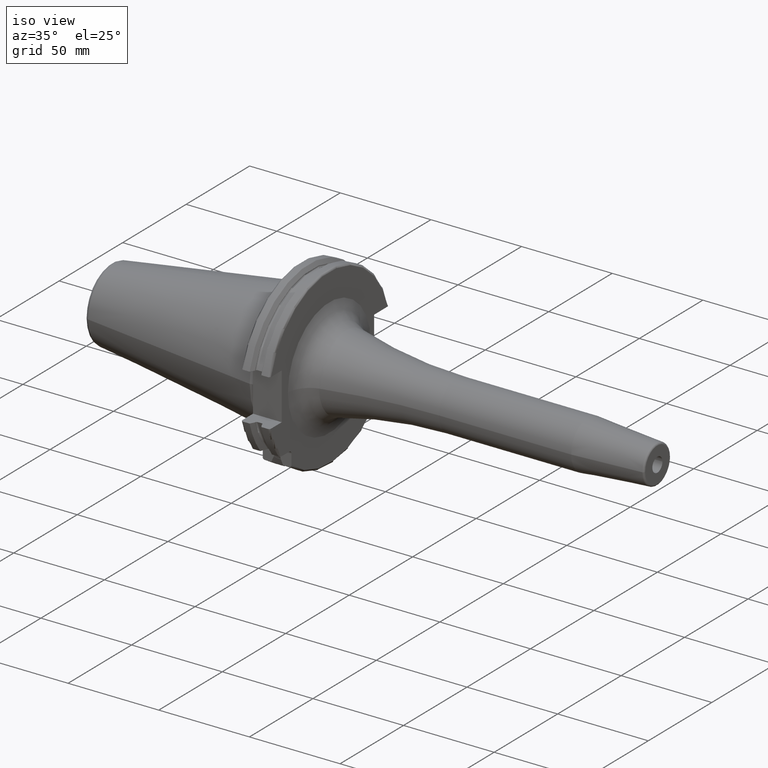
[diagram: clean part render]
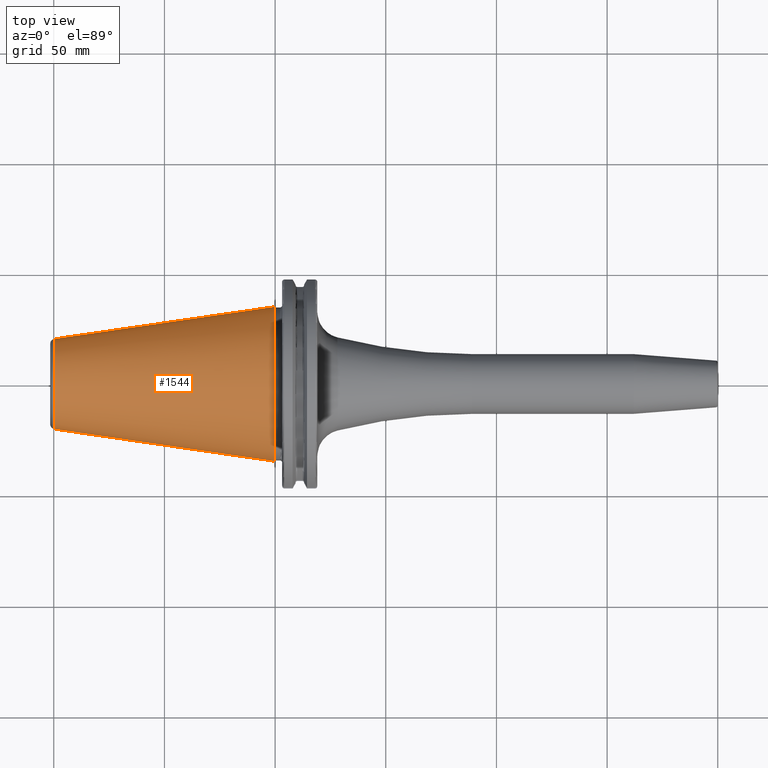
[diagram: tour spotlight — one face highlighted and labeled with its STEP entity id]
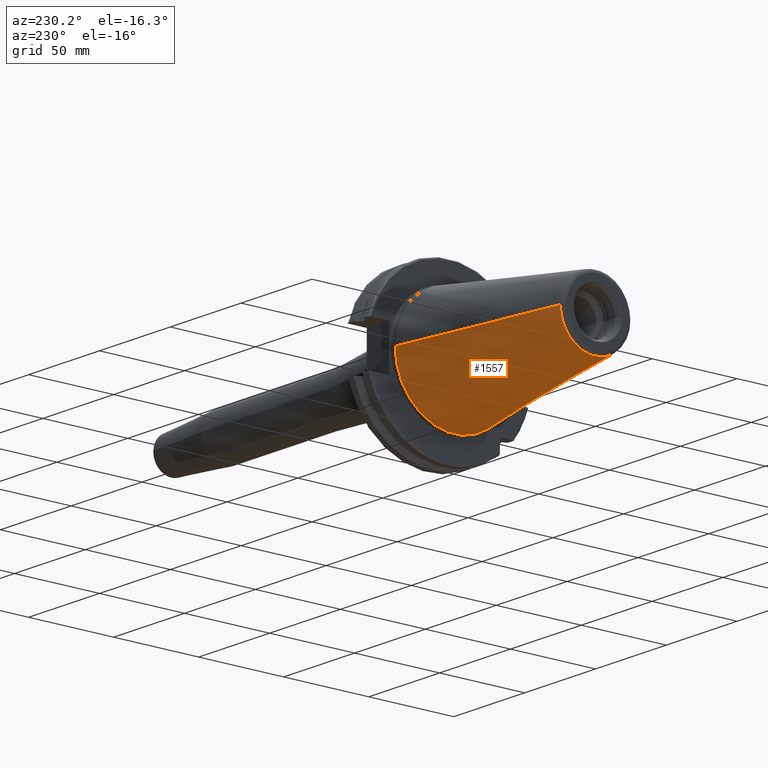
[diagram: tour spotlight — one face highlighted and labeled with its STEP entity id]
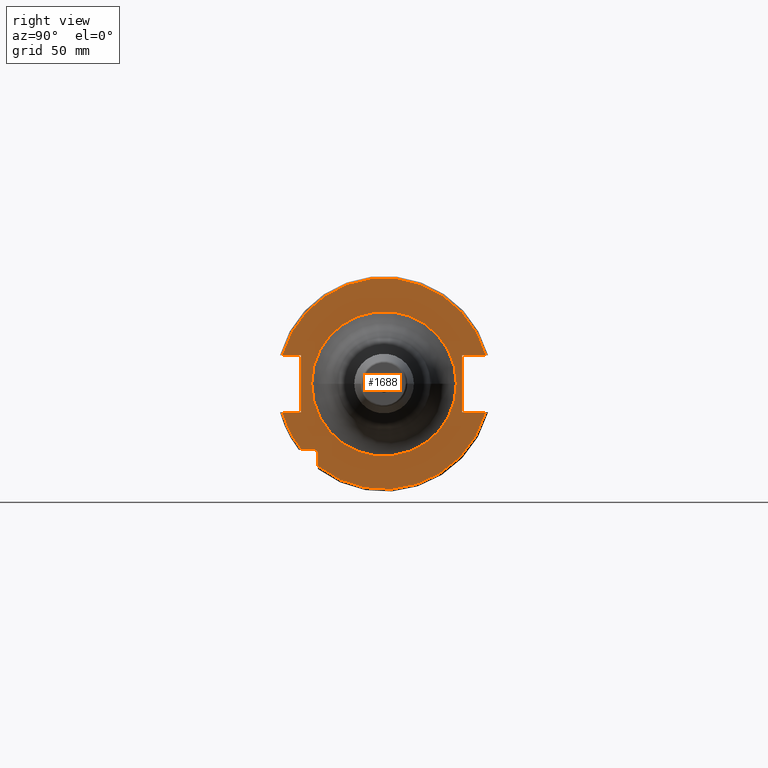
[diagram: tour spotlight — one face highlighted and labeled with its STEP entity id]
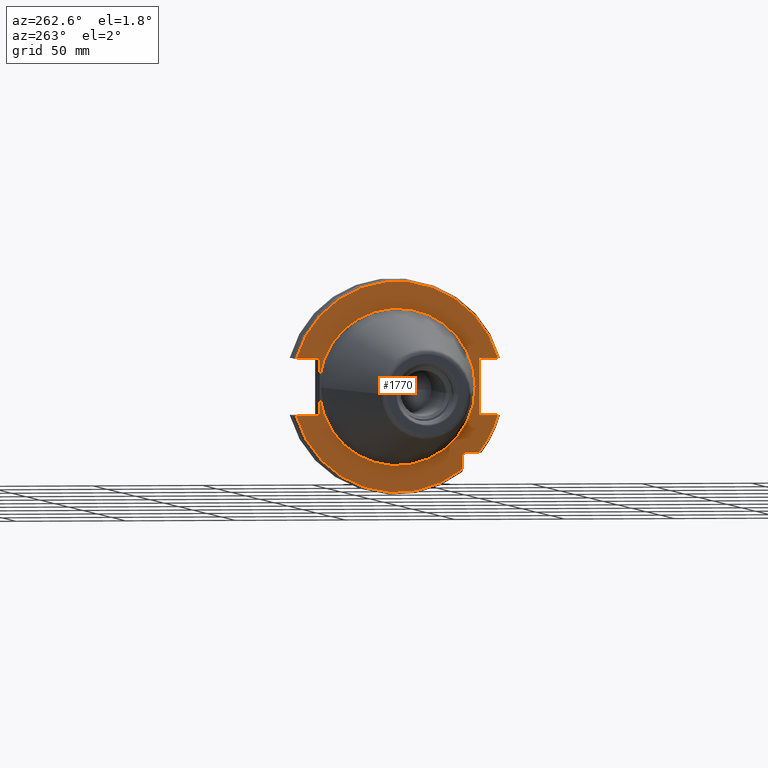
[diagram: tour spotlight — one face highlighted and labeled with its STEP entity id]
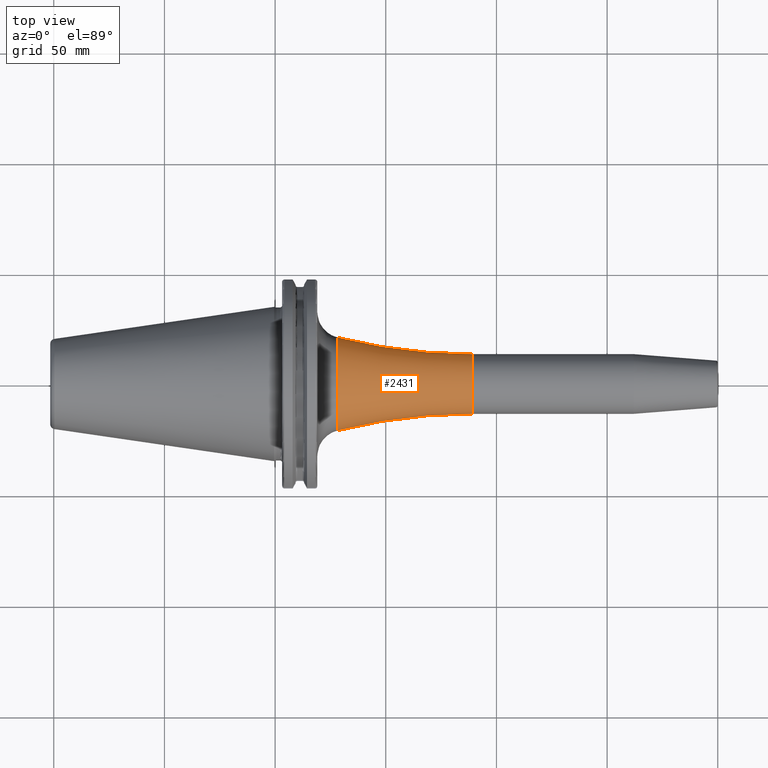
[diagram: tour spotlight — one face highlighted and labeled with its STEP entity id]
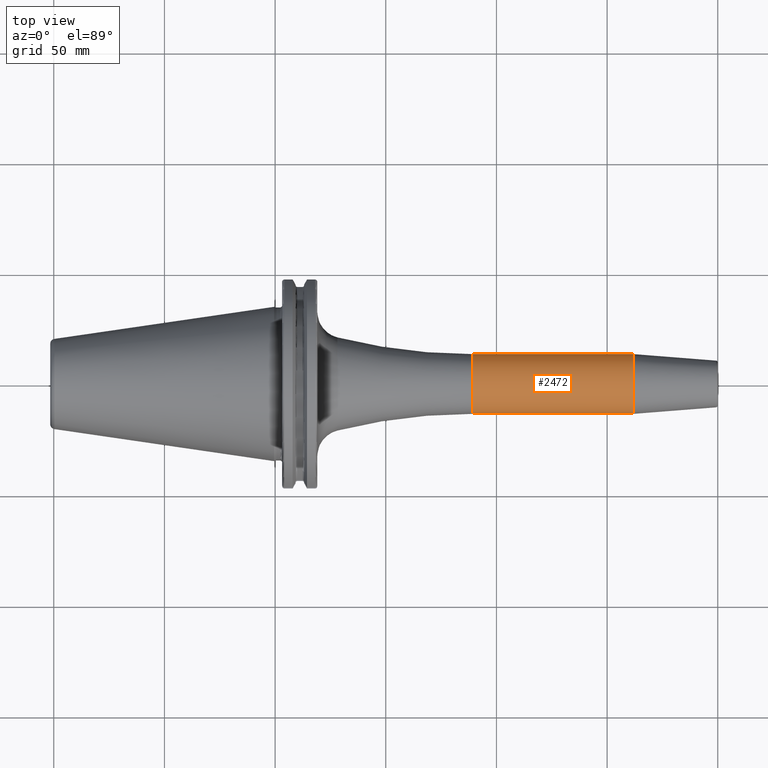
[diagram: tour spotlight — one face highlighted and labeled with its STEP entity id]
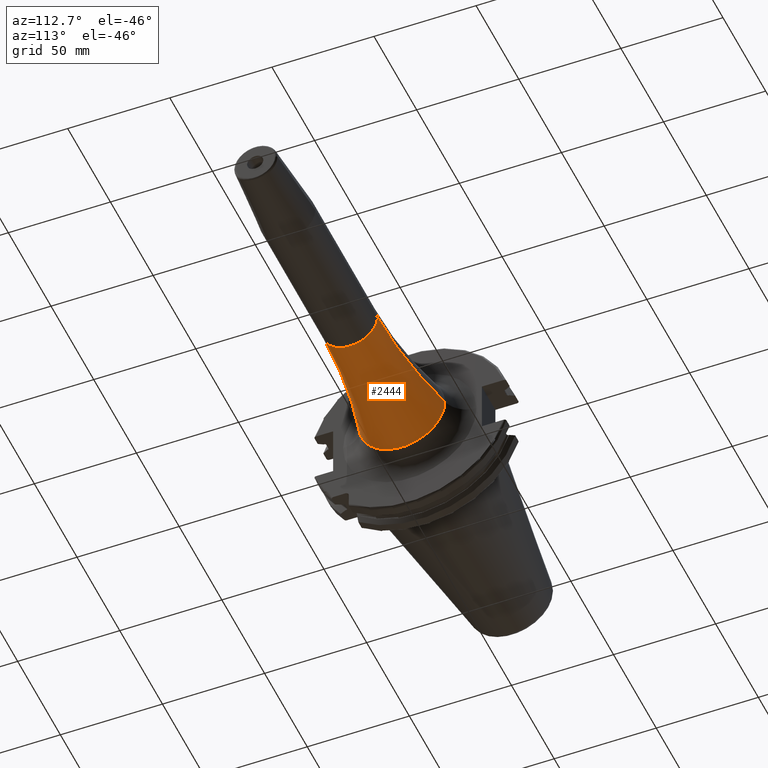
[diagram: tour spotlight — one face highlighted and labeled with its STEP entity id]
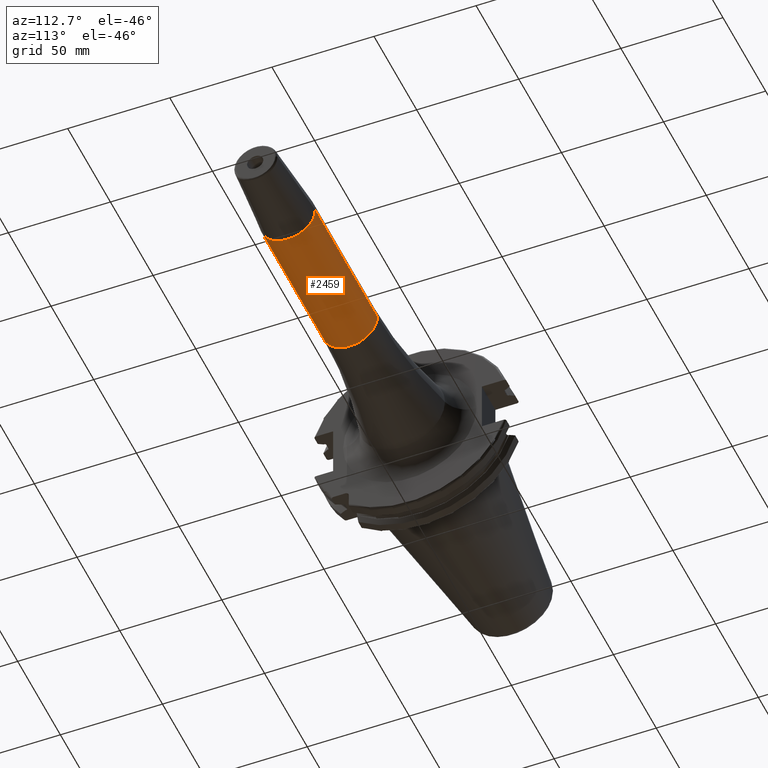
[diagram: tour spotlight — one face highlighted and labeled with its STEP entity id]
A machine part: a face-by-face anatomy tour. The part has 95 B-rep faces; the first image is the clean iso view, then the 8 largest visible faces are spotlighted one at a time (largest first), each with its STEP entity span.

Face 1 — top view, entity #1544. In plain terms, the highlighted conical surface has half-angle 8.298 deg.
Definition (entity closure, byte-faithful):
#37=CARTESIAN_POINT('',(-9.967471700563E1,0.E0,0.E0));
#38=DIRECTION('',(1.E0,0.E0,0.E0));
#39=DIRECTION('',(0.E0,1.E0,0.E0));
#40=AXIS2_PLACEMENT_3D('',#37,#38,#39);
#42=CARTESIAN_POINT('',(-4.896823332305E-1,0.E0,0.E0));
#43=DIRECTION('',(1.E0,0.E0,0.E0));
#44=DIRECTION('',(0.E0,1.E0,0.E0));
#45=AXIS2_PLACEMENT_3D('',#42,#43,#44);
#47=DIRECTION('',(-9.895312636440E-1,-1.443186691705E-1,0.E0));
#48=VECTOR('',#47,1.002343617797E2);
#49=CARTESIAN_POINT('',(-4.896823332305E-1,3.485358204157E1,0.E0));
#50=LINE('',#49,#48);
#51=DIRECTION('',(-9.895312636440E-1,1.443186691705E-1,0.E0));
#52=VECTOR('',#51,1.002343617797E2);
#53=CARTESIAN_POINT('',(-4.896823332305E-1,-3.485358204157E1,0.E0));
#54=LINE('',#53,#52);
#1226=CARTESIAN_POINT('',(-9.967471700563E1,2.038789234437E1,0.E0));
#1228=VERTEX_POINT('',#1226);
#1230=CARTESIAN_POINT('',(-9.967471700563E1,-2.038789234437E1,0.E0));
#1232=VERTEX_POINT('',#1230);
#1294=CARTESIAN_POINT('',(-4.896823332305E-1,3.485358204157E1,0.E0));
#1295=VERTEX_POINT('',#1294);
#1296=CARTESIAN_POINT('',(-4.896823332305E-1,-3.485358204157E1,0.E0));
#1297=VERTEX_POINT('',#1296);
#1530=CARTESIAN_POINT('',(-5.008219966943E1,0.E0,0.E0));
#1531=DIRECTION('',(1.E0,0.E0,0.E0));
#1532=DIRECTION('',(0.E0,-1.E0,0.E0));
#1533=AXIS2_PLACEMENT_3D('',#1530,#1531,#1532);
#1534=CONICAL_SURFACE('',#1533,2.762073719297E1,8.297826828206E0);
#1536=ORIENTED_EDGE('',*,*,#1535,.F.);
#1538=ORIENTED_EDGE('',*,*,#1537,.T.);
#1540=ORIENTED_EDGE('',*,*,#1539,.T.);
#1541=ORIENTED_EDGE('',*,*,#1523,.F.);
#1542=EDGE_LOOP('',(#1536,#1538,#1540,#1541));
#1543=FACE_OUTER_BOUND('',#1542,.F.);
#1544=ADVANCED_FACE('',(#1543),#1534,.T.);
#41=CIRCLE('',#40,2.038789234437E1);
#46=CIRCLE('',#45,3.485358204157E1);
#1523=EDGE_CURVE('',#1228,#1232,#41,.T.);
#1535=EDGE_CURVE('',#1295,#1228,#50,.T.);
#1537=EDGE_CURVE('',#1295,#1297,#46,.T.);
#1539=EDGE_CURVE('',#1297,#1232,#54,.T.);

Face 2 — auxiliary view, entity #1557. In plain terms, the highlighted conical surface has half-angle 8.298 deg.
Definition (entity closure, byte-faithful):
#32=CARTESIAN_POINT('',(-9.967471700563E1,0.E0,0.E0));
#33=DIRECTION('',(-1.E0,0.E0,0.E0));
#34=DIRECTION('',(0.E0,1.E0,0.E0));
#35=AXIS2_PLACEMENT_3D('',#32,#33,#34);
#47=DIRECTION('',(-9.895312636440E-1,-1.443186691705E-1,0.E0));
#48=VECTOR('',#47,1.002343617797E2);
#49=CARTESIAN_POINT('',(-4.896823332305E-1,3.485358204157E1,0.E0));
#50=LINE('',#49,#48);
#51=DIRECTION('',(-9.895312636440E-1,1.443186691705E-1,0.E0));
#52=VECTOR('',#51,1.002343617797E2);
#53=CARTESIAN_POINT('',(-4.896823332305E-1,-3.485358204157E1,0.E0));
#54=LINE('',#53,#52);
#55=CARTESIAN_POINT('',(-4.896823332305E-1,0.E0,0.E0));
#56=DIRECTION('',(-1.E0,0.E0,0.E0));
#57=DIRECTION('',(0.E0,1.E0,0.E0));
#58=AXIS2_PLACEMENT_3D('',#55,#56,#57);
#1226=CARTESIAN_POINT('',(-9.967471700563E1,2.038789234437E1,0.E0));
#1228=VERTEX_POINT('',#1226);
#1230=CARTESIAN_POINT('',(-9.967471700563E1,-2.038789234437E1,0.E0));
#1232=VERTEX_POINT('',#1230);
#1294=CARTESIAN_POINT('',(-4.896823332305E-1,3.485358204157E1,0.E0));
#1295=VERTEX_POINT('',#1294);
#1296=CARTESIAN_POINT('',(-4.896823332305E-1,-3.485358204157E1,0.E0));
#1297=VERTEX_POINT('',#1296);
#1545=CARTESIAN_POINT('',(-5.008219966943E1,0.E0,0.E0));
#1546=DIRECTION('',(1.E0,0.E0,0.E0));
#1547=DIRECTION('',(0.E0,-1.E0,0.E0));
#1548=AXIS2_PLACEMENT_3D('',#1545,#1546,#1547);
#1549=CONICAL_SURFACE('',#1548,2.762073719297E1,8.297826828206E0);
#1550=ORIENTED_EDGE('',*,*,#1535,.T.);
#1551=ORIENTED_EDGE('',*,*,#1512,.T.);
#1552=ORIENTED_EDGE('',*,*,#1539,.F.);
#1554=ORIENTED_EDGE('',*,*,#1553,.F.);
#1555=EDGE_LOOP('',(#1550,#1551,#1552,#1554));
#1556=FACE_OUTER_BOUND('',#1555,.F.);
#1557=ADVANCED_FACE('',(#1556),#1549,.T.);
#36=CIRCLE('',#35,2.038789234437E1);
#59=CIRCLE('',#58,3.485358204157E1);
#1512=EDGE_CURVE('',#1228,#1232,#36,.T.);
#1535=EDGE_CURVE('',#1295,#1228,#50,.T.);
#1539=EDGE_CURVE('',#1297,#1232,#54,.T.);
#1553=EDGE_CURVE('',#1295,#1297,#59,.T.);

Face 3 — right view, entity #1688. In plain terms, the highlighted planar face has unit normal (1, 0, 0).
Definition (entity closure, byte-faithful):
#126=DIRECTION('',(0.E0,0.E0,1.E0));
#127=VECTOR('',#126,5.653810627237E0);
#128=CARTESIAN_POINT('',(1.905E1,-2.985E1,-3.725381062724E1));
#129=LINE('',#128,#127);
#130=DIRECTION('',(0.E0,-1.E0,0.E0));
#131=VECTOR('',#130,5.653810627237E0);
#132=CARTESIAN_POINT('',(1.905E1,-3.16E1,-2.985E1));
#133=LINE('',#132,#131);
#134=DIRECTION('',(0.E0,1.E0,0.E0));
#135=VECTOR('',#134,8.461493733886E0);
#136=CARTESIAN_POINT('',(1.905E1,-4.596149373389E1,-1.29E1));
#137=LINE('',#136,#135);
#138=DIRECTION('',(0.E0,0.E0,1.E0));
#139=VECTOR('',#138,2.58E1);
#140=CARTESIAN_POINT('',(1.905E1,-3.75E1,-1.29E1));
#141=LINE('',#140,#139);
#142=DIRECTION('',(0.E0,1.E0,0.E0));
#143=VECTOR('',#142,8.461493733886E0);
#144=CARTESIAN_POINT('',(1.905E1,-4.596149373389E1,1.29E1));
#145=LINE('',#144,#143);
#146=DIRECTION('',(0.E0,-1.E0,0.E0));
#147=VECTOR('',#146,1.066149373389E1);
#148=CARTESIAN_POINT('',(1.905E1,4.596149373389E1,1.29E1));
#149=LINE('',#148,#147);
#150=DIRECTION('',(0.E0,0.E0,-1.E0));
#151=VECTOR('',#150,2.58E1);
#152=CARTESIAN_POINT('',(1.905E1,3.53E1,1.29E1));
#153=LINE('',#152,#151);
#154=DIRECTION('',(0.E0,-1.E0,0.E0));
#155=VECTOR('',#154,1.066149373389E1);
#156=CARTESIAN_POINT('',(1.905E1,4.596149373389E1,-1.29E1));
#157=LINE('',#156,#155);
#158=CARTESIAN_POINT('',(1.905E1,0.E0,0.E0));
#159=DIRECTION('',(1.E0,0.E0,0.E0));
#160=DIRECTION('',(0.E0,-1.E0,0.E0));
#161=AXIS2_PLACEMENT_3D('',#158,#159,#160);
#163=CARTESIAN_POINT('',(1.905E1,0.E0,0.E0));
#164=DIRECTION('',(1.E0,0.E0,0.E0));
#165=DIRECTION('',(0.E0,1.E0,0.E0));
#166=AXIS2_PLACEMENT_3D('',#163,#164,#165);
#172=CARTESIAN_POINT('',(1.905E1,-3.16E1,-3.16E1));
#173=DIRECTION('',(-1.E0,0.E0,0.E0));
#174=DIRECTION('',(0.E0,0.E0,1.E0));
#175=AXIS2_PLACEMENT_3D('',#172,#173,#174);
#545=CARTESIAN_POINT('',(1.905E1,0.E0,0.E0));
#546=DIRECTION('',(1.E0,0.E0,0.E0));
#547=DIRECTION('',(0.E0,9.627964123359E-1,2.702278083268E-1));
#548=AXIS2_PLACEMENT_3D('',#545,#546,#547);
#844=CARTESIAN_POINT('',(1.905E1,0.E0,0.E0));
#845=DIRECTION('',(-1.E0,0.E0,0.E0));
#846=DIRECTION('',(0.E0,9.627964123359E-1,-2.702278083268E-1));
#847=AXIS2_PLACEMENT_3D('',#844,#845,#846);
#860=CARTESIAN_POINT('',(1.905E1,0.E0,0.E0));
#861=DIRECTION('',(-1.E0,0.E0,0.E0));
#862=DIRECTION('',(0.E0,-7.803888060170E-1,-6.252945797329E-1));
#863=AXIS2_PLACEMENT_3D('',#860,#861,#862);
#874=CARTESIAN_POINT('',(1.905E1,-3.725381062724E1,-2.985E1));
#1348=CARTESIAN_POINT('',(1.905E1,4.596149373389E1,1.29E1));
#1349=CARTESIAN_POINT('',(1.905E1,3.53E1,1.29E1));
#1350=VERTEX_POINT('',#1348);
#1351=VERTEX_POINT('',#1349);
#1352=CARTESIAN_POINT('',(1.905E1,3.53E1,-1.29E1));
#1353=VERTEX_POINT('',#1352);
#1354=CARTESIAN_POINT('',(1.905E1,4.596149373389E1,-1.29E1));
#1355=VERTEX_POINT('',#1354);
#1356=CARTESIAN_POINT('',(1.905E1,-4.596149373389E1,-1.29E1));
#1357=CARTESIAN_POINT('',(1.905E1,-3.75E1,-1.29E1));
#1358=VERTEX_POINT('',#1356);
#1359=VERTEX_POINT('',#1357);
#1360=CARTESIAN_POINT('',(1.905E1,-3.75E1,1.29E1));
#1361=VERTEX_POINT('',#1360);
#1362=CARTESIAN_POINT('',(1.905E1,-4.596149373389E1,1.29E1));
#1363=VERTEX_POINT('',#1362);
#1417=CARTESIAN_POINT('',(1.905E1,-2.985E1,-3.725381062724E1));
#1418=VERTEX_POINT('',#1417);
#1425=CARTESIAN_POINT('',(1.905E1,-3.16E1,-2.985E1));
#1426=CARTESIAN_POINT('',(1.905E1,-2.985E1,-3.16E1));
#1427=VERTEX_POINT('',#1425);
#1428=VERTEX_POINT('',#1426);
#1450=VERTEX_POINT('',#874);
#1476=CARTESIAN_POINT('',(1.905E1,-3.267539125994E1,0.E0));
#1477=CARTESIAN_POINT('',(1.905E1,3.267539125994E1,0.E0));
#1478=VERTEX_POINT('',#1476);
#1479=VERTEX_POINT('',#1477);
#1652=CARTESIAN_POINT('',(1.905E1,0.E0,0.E0));
#1653=DIRECTION('',(1.E0,0.E0,0.E0));
#1654=DIRECTION('',(0.E0,-1.E0,0.E0));
#1655=AXIS2_PLACEMENT_3D('',#1652,#1653,#1654);
#1656=PLANE('',#1655);
#1658=ORIENTED_EDGE('',*,*,#1657,.T.);
#1660=ORIENTED_EDGE('',*,*,#1659,.F.);
#1662=ORIENTED_EDGE('',*,*,#1661,.T.);
#1664=ORIENTED_EDGE('',*,*,#1663,.T.);
#1666=ORIENTED_EDGE('',*,*,#1665,.T.);
#1668=ORIENTED_EDGE('',*,*,#1667,.T.);
#1670=ORIENTED_EDGE('',*,*,#1669,.F.);
#1672=ORIENTED_EDGE('',*,*,#1671,.F.);
#1674=ORIENTED_EDGE('',*,*,#1673,.T.);
#1675=ORIENTED_EDGE('',*,*,#1636,.T.);
#1677=ORIENTED_EDGE('',*,*,#1676,.F.);
#1679=ORIENTED_EDGE('',*,*,#1678,.T.);
#1680=EDGE_LOOP('',(#1658,#1660,#1662,#1664,#1666,#1668,#1670,#1672,#1674,#1675,
#1677,#1679));
#1681=FACE_OUTER_BOUND('',#1680,.F.);
#1683=ORIENTED_EDGE('',*,*,#1682,.T.);
#1685=ORIENTED_EDGE('',*,*,#1684,.T.);
#1686=EDGE_LOOP('',(#1683,#1685));
#1687=FACE_BOUND('',#1686,.F.);
#1688=ADVANCED_FACE('',(#1681,#1687),#1656,.T.);
#162=CIRCLE('',#161,3.267539125994E1);
#167=CIRCLE('',#166,3.267539125994E1);
#176=CIRCLE('',#175,1.75E0);
#549=CIRCLE('',#548,4.77375E1);
#848=CIRCLE('',#847,4.77375E1);
#864=CIRCLE('',#863,4.77375E1);
#1636=EDGE_CURVE('',#1351,#1353,#153,.T.);
#1657=EDGE_CURVE('',#1418,#1428,#129,.T.);
#1659=EDGE_CURVE('',#1427,#1428,#176,.T.);
#1661=EDGE_CURVE('',#1427,#1450,#133,.T.);
#1663=EDGE_CURVE('',#1450,#1358,#864,.T.);
#1665=EDGE_CURVE('',#1358,#1359,#137,.T.);
#1667=EDGE_CURVE('',#1359,#1361,#141,.T.);
#1669=EDGE_CURVE('',#1363,#1361,#145,.T.);
#1671=EDGE_CURVE('',#1350,#1363,#549,.T.);
#1673=EDGE_CURVE('',#1350,#1351,#149,.T.);
#1676=EDGE_CURVE('',#1355,#1353,#157,.T.);
#1678=EDGE_CURVE('',#1355,#1418,#848,.T.);
#1682=EDGE_CURVE('',#1478,#1479,#162,.T.);
#1684=EDGE_CURVE('',#1479,#1478,#167,.T.);

Face 4 — auxiliary view, entity #1770. In plain terms, the highlighted planar face has unit normal (1, 0, 0).
Definition (entity closure, byte-faithful):
#117=CARTESIAN_POINT('',(3.2E0,0.E0,0.E0));
#118=DIRECTION('',(-1.E0,0.E0,0.E0));
#119=DIRECTION('',(0.E0,9.922698524245E-1,-1.240989120402E-1));
#120=AXIS2_PLACEMENT_3D('',#117,#118,#119);
#177=CARTESIAN_POINT('',(3.2E0,-3.16E1,-3.16E1));
#178=DIRECTION('',(1.E0,0.E0,0.E0));
#179=DIRECTION('',(0.E0,1.E0,0.E0));
#180=AXIS2_PLACEMENT_3D('',#177,#178,#179);
#182=DIRECTION('',(0.E0,-1.E0,0.E0));
#183=VECTOR('',#182,5.653810627237E0);
#184=CARTESIAN_POINT('',(3.2E0,-3.16E1,-2.985E1));
#185=LINE('',#184,#183);
#186=DIRECTION('',(0.E0,0.E0,1.E0));
#187=VECTOR('',#186,5.653810627237E0);
#188=CARTESIAN_POINT('',(3.2E0,-2.985E1,-3.725381062724E1));
#189=LINE('',#188,#187);
#190=CARTESIAN_POINT('',(3.2E0,0.E0,0.E0));
#191=DIRECTION('',(-1.E0,0.E0,0.E0));
#192=DIRECTION('',(0.E0,9.627964123359E-1,-2.702278083268E-1));
#193=AXIS2_PLACEMENT_3D('',#190,#191,#192);
#195=DIRECTION('',(0.E0,-1.E0,0.E0));
#196=VECTOR('',#195,1.066149373389E1);
#197=CARTESIAN_POINT('',(3.2E0,4.596149373389E1,-1.29E1));
#198=LINE('',#197,#196);
#199=DIRECTION('',(0.E0,0.E0,-1.E0));
#200=VECTOR('',#199,8.485181204172E0);
#201=CARTESIAN_POINT('',(3.2E0,3.53E1,-4.414818795828E0));
#202=LINE('',#201,#200);
#203=DIRECTION('',(0.E0,0.E0,-1.E0));
#204=VECTOR('',#203,8.485181204172E0);
#205=CARTESIAN_POINT('',(3.2E0,3.53E1,1.29E1));
#206=LINE('',#205,#204);
#207=DIRECTION('',(0.E0,-1.E0,0.E0));
#208=VECTOR('',#207,1.066149373389E1);
#209=CARTESIAN_POINT('',(3.2E0,4.596149373389E1,1.29E1));
#210=LINE('',#209,#208);
#211=CARTESIAN_POINT('',(3.2E0,0.E0,0.E0));
#212=DIRECTION('',(1.E0,0.E0,0.E0));
#213=DIRECTION('',(0.E0,9.627964123359E-1,2.702278083268E-1));
#214=AXIS2_PLACEMENT_3D('',#211,#212,#213);
#216=DIRECTION('',(0.E0,1.E0,0.E0));
#217=VECTOR('',#216,8.461493733886E0);
#218=CARTESIAN_POINT('',(3.2E0,-4.596149373389E1,1.29E1));
#219=LINE('',#218,#217);
#220=DIRECTION('',(0.E0,0.E0,1.E0));
#221=VECTOR('',#220,2.58E1);
#222=CARTESIAN_POINT('',(3.2E0,-3.75E1,-1.29E1));
#223=LINE('',#222,#221);
#224=DIRECTION('',(0.E0,1.E0,0.E0));
#225=VECTOR('',#224,8.461493733886E0);
#226=CARTESIAN_POINT('',(3.2E0,-4.596149373389E1,-1.29E1));
#227=LINE('',#226,#225);
#228=CARTESIAN_POINT('',(3.2E0,0.E0,0.E0));
#229=DIRECTION('',(-1.E0,0.E0,0.E0));
#230=DIRECTION('',(0.E0,-7.803888060170E-1,-6.252945797329E-1));
#231=AXIS2_PLACEMENT_3D('',#228,#229,#230);
#279=CARTESIAN_POINT('',(3.2E0,-3.725381062724E1,-2.985E1));
#891=CARTESIAN_POINT('',(3.2E0,0.E0,0.E0));
#892=DIRECTION('',(1.E0,0.E0,0.E0));
#893=DIRECTION('',(0.E0,9.922698524245E-1,1.240989120402E-1));
#894=AXIS2_PLACEMENT_3D('',#891,#892,#893);
#1238=CARTESIAN_POINT('',(3.2E0,-3.5575E1,0.E0));
#1240=VERTEX_POINT('',#1238);
#1372=CARTESIAN_POINT('',(3.2E0,4.596149373389E1,1.29E1));
#1373=CARTESIAN_POINT('',(3.2E0,3.53E1,1.29E1));
#1374=VERTEX_POINT('',#1372);
#1375=VERTEX_POINT('',#1373);
#1376=CARTESIAN_POINT('',(3.2E0,3.53E1,4.414818795828E0));
#1377=VERTEX_POINT('',#1376);
#1378=CARTESIAN_POINT('',(3.2E0,3.53E1,-4.414818795828E0));
#1379=CARTESIAN_POINT('',(3.2E0,3.53E1,-1.29E1));
#1380=VERTEX_POINT('',#1378);
#1381=VERTEX_POINT('',#1379);
#1382=CARTESIAN_POINT('',(3.2E0,4.596149373389E1,-1.29E1));
#1383=VERTEX_POINT('',#1382);
#1384=CARTESIAN_POINT('',(3.2E0,-4.596149373389E1,-1.29E1));
#1385=CARTESIAN_POINT('',(3.2E0,-3.75E1,-1.29E1));
#1386=VERTEX_POINT('',#1384);
#1387=VERTEX_POINT('',#1385);
#1388=CARTESIAN_POINT('',(3.2E0,-3.75E1,1.29E1));
#1389=VERTEX_POINT('',#1388);
#1390=CARTESIAN_POINT('',(3.2E0,-4.596149373389E1,1.29E1));
#1391=VERTEX_POINT('',#1390);
#1423=CARTESIAN_POINT('',(3.2E0,-2.985E1,-3.725381062724E1));
#1424=VERTEX_POINT('',#1423);
#1429=CARTESIAN_POINT('',(3.2E0,-2.985E1,-3.16E1));
#1430=CARTESIAN_POINT('',(3.2E0,-3.16E1,-2.985E1));
#1431=VERTEX_POINT('',#1429);
#1432=VERTEX_POINT('',#1430);
#1451=VERTEX_POINT('',#279);
#1738=CARTESIAN_POINT('',(3.2E0,0.E0,0.E0));
#1739=DIRECTION('',(1.E0,0.E0,0.E0));
#1740=DIRECTION('',(0.E0,-1.E0,0.E0));
#1741=AXIS2_PLACEMENT_3D('',#1738,#1739,#1740);
#1742=PLANE('',#1741);
#1744=ORIENTED_EDGE('',*,*,#1743,.F.);
#1745=ORIENTED_EDGE('',*,*,#1731,.F.);
#1746=ORIENTED_EDGE('',*,*,#1719,.F.);
#1748=ORIENTED_EDGE('',*,*,#1747,.F.);
#1750=ORIENTED_EDGE('',*,*,#1749,.T.);
#1751=ORIENTED_EDGE('',*,*,#1645,.F.);
#1752=ORIENTED_EDGE('',*,*,#1626,.T.);
#1754=ORIENTED_EDGE('',*,*,#1753,.F.);
#1755=ORIENTED_EDGE('',*,*,#1640,.F.);
#1757=ORIENTED_EDGE('',*,*,#1756,.F.);
#1759=ORIENTED_EDGE('',*,*,#1758,.T.);
#1761=ORIENTED_EDGE('',*,*,#1760,.T.);
#1763=ORIENTED_EDGE('',*,*,#1762,.F.);
#1765=ORIENTED_EDGE('',*,*,#1764,.F.);
#1767=ORIENTED_EDGE('',*,*,#1766,.F.);
#1768=EDGE_LOOP('',(#1744,#1745,#1746,#1748,#1750,#1751,#1752,#1754,#1755,#1757,
#1759,#1761,#1763,#1765,#1767));
#1769=FACE_OUTER_BOUND('',#1768,.F.);
#1770=ADVANCED_FACE('',(#1769),#1742,.F.);
#121=CIRCLE('',#120,3.5575E1);
#181=CIRCLE('',#180,1.75E0);
#194=CIRCLE('',#193,4.77375E1);
#215=CIRCLE('',#214,4.77375E1);
#232=CIRCLE('',#231,4.77375E1);
#895=CIRCLE('',#894,3.5575E1);
#1626=EDGE_CURVE('',#1380,#1240,#121,.T.);
#1640=EDGE_CURVE('',#1375,#1377,#206,.T.);
#1645=EDGE_CURVE('',#1380,#1381,#202,.T.);
#1719=EDGE_CURVE('',#1424,#1431,#189,.T.);
#1731=EDGE_CURVE('',#1431,#1432,#181,.T.);
#1743=EDGE_CURVE('',#1432,#1451,#185,.T.);
#1747=EDGE_CURVE('',#1383,#1424,#194,.T.);
#1749=EDGE_CURVE('',#1383,#1381,#198,.T.);
#1753=EDGE_CURVE('',#1377,#1240,#895,.T.);
#1756=EDGE_CURVE('',#1374,#1375,#210,.T.);
#1758=EDGE_CURVE('',#1374,#1391,#215,.T.);
#1760=EDGE_CURVE('',#1391,#1389,#219,.T.);
#1762=EDGE_CURVE('',#1387,#1389,#223,.T.);
#1764=EDGE_CURVE('',#1386,#1387,#227,.T.);
#1766=EDGE_CURVE('',#1451,#1386,#232,.T.);

Face 5 — top view, entity #2431. In plain terms, the highlighted toroidal blend (fillet) surface has major radius 263.5 mm and minor (blend) radius 250 mm.
Definition (entity closure, byte-faithful):
#906=CARTESIAN_POINT('',(2.812563025210E1,0.E0,0.E0));
#907=DIRECTION('',(1.E0,0.E0,0.E0));
#908=DIRECTION('',(0.E0,1.E0,0.E0));
#909=AXIS2_PLACEMENT_3D('',#906,#907,#908);
#916=CARTESIAN_POINT('',(8.905E1,-2.635E2,-6.453888631507E-14));
#917=DIRECTION('',(0.E0,0.E0,1.E0));
#918=DIRECTION('',(0.E0,1.E0,0.E0));
#919=AXIS2_PLACEMENT_3D('',#916,#917,#918);
#921=CARTESIAN_POINT('',(8.905E1,2.635E2,3.226944315753E-14));
#922=DIRECTION('',(0.E0,0.E0,-1.E0));
#923=DIRECTION('',(0.E0,-1.E0,0.E0));
#924=AXIS2_PLACEMENT_3D('',#921,#922,#923);
#944=CARTESIAN_POINT('',(8.905E1,0.E0,0.E0));
#945=DIRECTION('',(1.E0,0.E0,0.E0));
#946=DIRECTION('',(0.E0,1.E0,0.E0));
#947=AXIS2_PLACEMENT_3D('',#944,#945,#946);
#1472=CARTESIAN_POINT('',(8.905E1,1.35E1,0.E0));
#1473=CARTESIAN_POINT('',(8.905E1,-1.35E1,0.E0));
#1474=VERTEX_POINT('',#1472);
#1475=VERTEX_POINT('',#1473);
#1480=CARTESIAN_POINT('',(2.812563025210E1,-2.103717569322E1,0.E0));
#1481=CARTESIAN_POINT('',(2.812563025210E1,2.103717569322E1,0.E0));
#1482=VERTEX_POINT('',#1480);
#1483=VERTEX_POINT('',#1481);
#2417=CARTESIAN_POINT('',(8.905E1,0.E0,0.E0));
#2418=DIRECTION('',(1.E0,0.E0,0.E0));
#2419=DIRECTION('',(0.E0,-1.E0,0.E0));
#2420=AXIS2_PLACEMENT_3D('',#2417,#2418,#2419);
#2421=TOROIDAL_SURFACE('',#2420,2.635E2,2.5E2);
#2422=ORIENTED_EDGE('',*,*,#2411,.F.);
#2424=ORIENTED_EDGE('',*,*,#2423,.F.);
#2426=ORIENTED_EDGE('',*,*,#2425,.T.);
#2428=ORIENTED_EDGE('',*,*,#2427,.T.);
#2429=EDGE_LOOP('',(#2422,#2424,#2426,#2428));
#2430=FACE_OUTER_BOUND('',#2429,.F.);
#2431=ADVANCED_FACE('',(#2430),#2421,.F.);
#910=CIRCLE('',#909,2.103717569322E1);
#920=CIRCLE('',#919,2.5E2);
#925=CIRCLE('',#924,2.5E2);
#948=CIRCLE('',#947,1.35E1);
#2411=EDGE_CURVE('',#1483,#1482,#910,.T.);
#2423=EDGE_CURVE('',#1474,#1483,#925,.T.);
#2425=EDGE_CURVE('',#1474,#1475,#948,.T.);
#2427=EDGE_CURVE('',#1475,#1482,#920,.T.);

Face 6 — top view, entity #2472. In plain terms, the highlighted cylindrical surface (edge-blend (fillet) strip) has radius 13.5 mm, axis along (1, 0, 0).
Definition (entity closure, byte-faithful):
#931=DIRECTION('',(-1.E0,0.E0,0.E0));
#932=VECTOR('',#931,7.283138579148E1);
#933=CARTESIAN_POINT('',(1.618813857915E2,-1.35E1,0.E0));
#934=LINE('',#933,#932);
#940=DIRECTION('',(-1.E0,0.E0,0.E0));
#941=VECTOR('',#940,7.283138579148E1);
#942=CARTESIAN_POINT('',(1.618813857915E2,1.35E1,0.E0));
#943=LINE('',#942,#941);
#944=CARTESIAN_POINT('',(8.905E1,0.E0,0.E0));
#945=DIRECTION('',(1.E0,0.E0,0.E0));
#946=DIRECTION('',(0.E0,1.E0,0.E0));
#947=AXIS2_PLACEMENT_3D('',#944,#945,#946);
#949=CARTESIAN_POINT('',(1.618813857915E2,0.E0,0.E0));
#950=DIRECTION('',(1.E0,0.E0,0.E0));
#951=DIRECTION('',(0.E0,1.E0,0.E0));
#952=AXIS2_PLACEMENT_3D('',#949,#950,#951);
#1452=CARTESIAN_POINT('',(1.618813857915E2,1.35E1,0.E0));
#1453=CARTESIAN_POINT('',(1.618813857915E2,-1.35E1,0.E0));
#1454=VERTEX_POINT('',#1452);
#1455=VERTEX_POINT('',#1453);
#1472=CARTESIAN_POINT('',(8.905E1,1.35E1,0.E0));
#1473=CARTESIAN_POINT('',(8.905E1,-1.35E1,0.E0));
#1474=VERTEX_POINT('',#1472);
#1475=VERTEX_POINT('',#1473);
#2460=CARTESIAN_POINT('',(1.00025E1,0.E0,0.E0));
#2461=DIRECTION('',(1.E0,0.E0,0.E0));
#2462=DIRECTION('',(0.E0,-1.E0,0.E0));
#2463=AXIS2_PLACEMENT_3D('',#2460,#2461,#2462);
#2464=CYLINDRICAL_SURFACE('',#2463,1.35E1);
#2465=ORIENTED_EDGE('',*,*,#2425,.F.);
#2466=ORIENTED_EDGE('',*,*,#2455,.F.);
#2468=ORIENTED_EDGE('',*,*,#2467,.T.);
#2469=ORIENTED_EDGE('',*,*,#2451,.T.);
#2470=EDGE_LOOP('',(#2465,#2466,#2468,#2469));
#2471=FACE_OUTER_BOUND('',#2470,.F.);
#2472=ADVANCED_FACE('',(#2471),#2464,.T.);
#948=CIRCLE('',#947,1.35E1);
#953=CIRCLE('',#952,1.35E1);
#2425=EDGE_CURVE('',#1474,#1475,#948,.T.);
#2451=EDGE_CURVE('',#1455,#1475,#934,.T.);
#2455=EDGE_CURVE('',#1454,#1474,#943,.T.);
#2467=EDGE_CURVE('',#1454,#1455,#953,.T.);

Face 7 — auxiliary view, entity #2444. In plain terms, the highlighted toroidal blend (fillet) surface has major radius 263.5 mm and minor (blend) radius 250 mm.
Definition (entity closure, byte-faithful):
#911=CARTESIAN_POINT('',(2.812563025210E1,0.E0,0.E0));
#912=DIRECTION('',(1.E0,0.E0,0.E0));
#913=DIRECTION('',(0.E0,-1.E0,0.E0));
#914=AXIS2_PLACEMENT_3D('',#911,#912,#913);
#916=CARTESIAN_POINT('',(8.905E1,-2.635E2,-6.453888631507E-14));
#917=DIRECTION('',(0.E0,0.E0,1.E0));
#918=DIRECTION('',(0.E0,1.E0,0.E0));
#919=AXIS2_PLACEMENT_3D('',#916,#917,#918);
#921=CARTESIAN_POINT('',(8.905E1,2.635E2,3.226944315753E-14));
#922=DIRECTION('',(0.E0,0.E0,-1.E0));
#923=DIRECTION('',(0.E0,-1.E0,0.E0));
#924=AXIS2_PLACEMENT_3D('',#921,#922,#923);
#926=CARTESIAN_POINT('',(8.905E1,0.E0,0.E0));
#927=DIRECTION('',(1.E0,0.E0,0.E0));
#928=DIRECTION('',(0.E0,-1.E0,0.E0));
#929=AXIS2_PLACEMENT_3D('',#926,#927,#928);
#1472=CARTESIAN_POINT('',(8.905E1,1.35E1,0.E0));
#1473=CARTESIAN_POINT('',(8.905E1,-1.35E1,0.E0));
#1474=VERTEX_POINT('',#1472);
#1475=VERTEX_POINT('',#1473);
#1480=CARTESIAN_POINT('',(2.812563025210E1,-2.103717569322E1,0.E0));
#1481=CARTESIAN_POINT('',(2.812563025210E1,2.103717569322E1,0.E0));
#1482=VERTEX_POINT('',#1480);
#1483=VERTEX_POINT('',#1481);
#2432=CARTESIAN_POINT('',(8.905E1,0.E0,0.E0));
#2433=DIRECTION('',(1.E0,0.E0,0.E0));
#2434=DIRECTION('',(0.E0,-1.E0,0.E0));
#2435=AXIS2_PLACEMENT_3D('',#2432,#2433,#2434);
#2436=TOROIDAL_SURFACE('',#2435,2.635E2,2.5E2);
#2437=ORIENTED_EDGE('',*,*,#2397,.F.);
#2438=ORIENTED_EDGE('',*,*,#2427,.F.);
#2440=ORIENTED_EDGE('',*,*,#2439,.T.);
#2441=ORIENTED_EDGE('',*,*,#2423,.T.);
#2442=EDGE_LOOP('',(#2437,#2438,#2440,#2441));
#2443=FACE_OUTER_BOUND('',#2442,.F.);
#2444=ADVANCED_FACE('',(#2443),#2436,.F.);
#915=CIRCLE('',#914,2.103717569322E1);
#920=CIRCLE('',#919,2.5E2);
#925=CIRCLE('',#924,2.5E2);
#930=CIRCLE('',#929,1.35E1);
#2397=EDGE_CURVE('',#1482,#1483,#915,.T.);
#2423=EDGE_CURVE('',#1474,#1483,#925,.T.);
#2427=EDGE_CURVE('',#1475,#1482,#920,.T.);
#2439=EDGE_CURVE('',#1475,#1474,#930,.T.);

Face 8 — auxiliary view, entity #2459. In plain terms, the highlighted cylindrical surface (edge-blend (fillet) strip) has radius 13.5 mm, axis along (1, 0, 0).
Definition (entity closure, byte-faithful):
#926=CARTESIAN_POINT('',(8.905E1,0.E0,0.E0));
#927=DIRECTION('',(1.E0,0.E0,0.E0));
#928=DIRECTION('',(0.E0,-1.E0,0.E0));
#929=AXIS2_PLACEMENT_3D('',#926,#927,#928);
#931=DIRECTION('',(-1.E0,0.E0,0.E0));
#932=VECTOR('',#931,7.283138579148E1);
#933=CARTESIAN_POINT('',(1.618813857915E2,-1.35E1,0.E0));
#934=LINE('',#933,#932);
#935=CARTESIAN_POINT('',(1.618813857915E2,0.E0,0.E0));
#936=DIRECTION('',(-1.E0,0.E0,0.E0));
#937=DIRECTION('',(0.E0,1.E0,0.E0));
#938=AXIS2_PLACEMENT_3D('',#935,#936,#937);
#940=DIRECTION('',(-1.E0,0.E0,0.E0));
#941=VECTOR('',#940,7.283138579148E1);
#942=CARTESIAN_POINT('',(1.618813857915E2,1.35E1,0.E0));
#943=LINE('',#942,#941);
#1452=CARTESIAN_POINT('',(1.618813857915E2,1.35E1,0.E0));
#1453=CARTESIAN_POINT('',(1.618813857915E2,-1.35E1,0.E0));
#1454=VERTEX_POINT('',#1452);
#1455=VERTEX_POINT('',#1453);
#1472=CARTESIAN_POINT('',(8.905E1,1.35E1,0.E0));
#1473=CARTESIAN_POINT('',(8.905E1,-1.35E1,0.E0));
#1474=VERTEX_POINT('',#1472);
#1475=VERTEX_POINT('',#1473);
#2445=CARTESIAN_POINT('',(1.00025E1,0.E0,0.E0));
#2446=DIRECTION('',(1.E0,0.E0,0.E0));
#2447=DIRECTION('',(0.E0,-1.E0,0.E0));
#2448=AXIS2_PLACEMENT_3D('',#2445,#2446,#2447);
#2449=CYLINDRICAL_SURFACE('',#2448,1.35E1);
#2450=ORIENTED_EDGE('',*,*,#2439,.F.);
#2452=ORIENTED_EDGE('',*,*,#2451,.F.);
#2454=ORIENTED_EDGE('',*,*,#2453,.F.);
#2456=ORIENTED_EDGE('',*,*,#2455,.T.);
#2457=EDGE_LOOP('',(#2450,#2452,#2454,#2456));
#2458=FACE_OUTER_BOUND('',#2457,.F.);
#2459=ADVANCED_FACE('',(#2458),#2449,.T.);
#930=CIRCLE('',#929,1.35E1);
#939=CIRCLE('',#938,1.35E1);
#2439=EDGE_CURVE('',#1475,#1474,#930,.T.);
#2451=EDGE_CURVE('',#1455,#1475,#934,.T.);
#2453=EDGE_CURVE('',#1454,#1455,#939,.T.);
#2455=EDGE_CURVE('',#1454,#1474,#943,.T.);